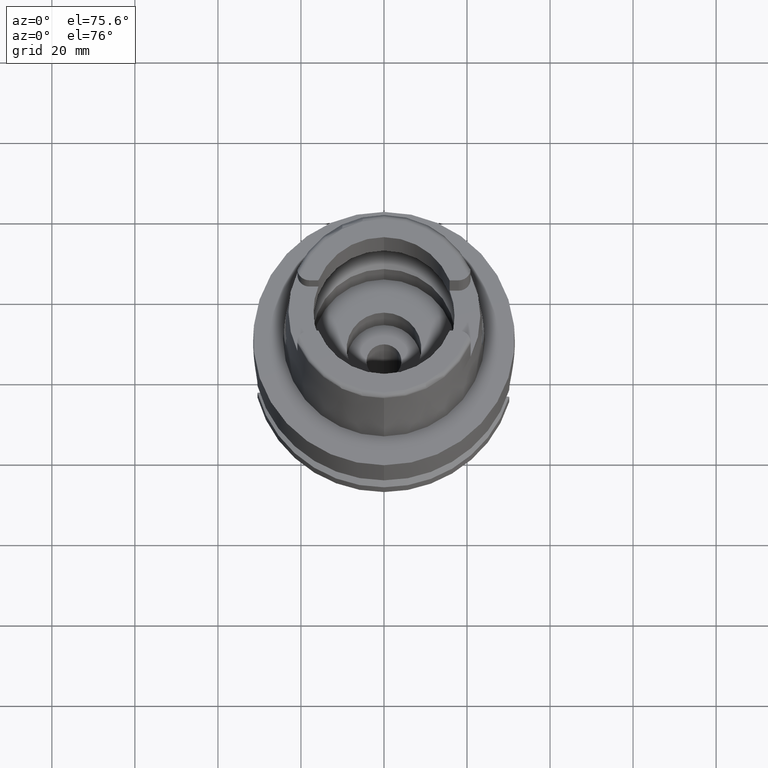
[diagram: clean part render]
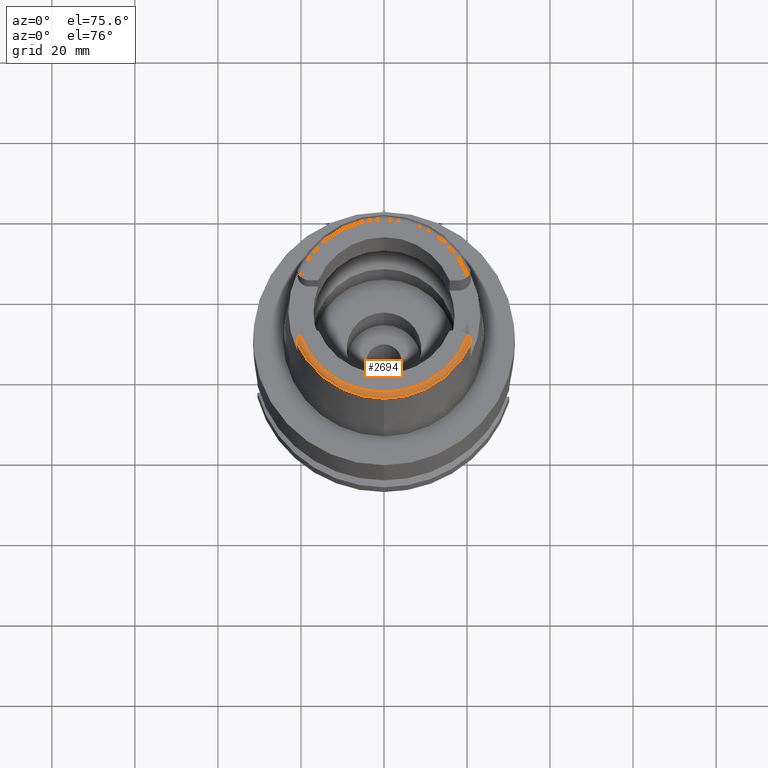
[diagram: same view with one face highlighted and labeled with its STEP entity id]
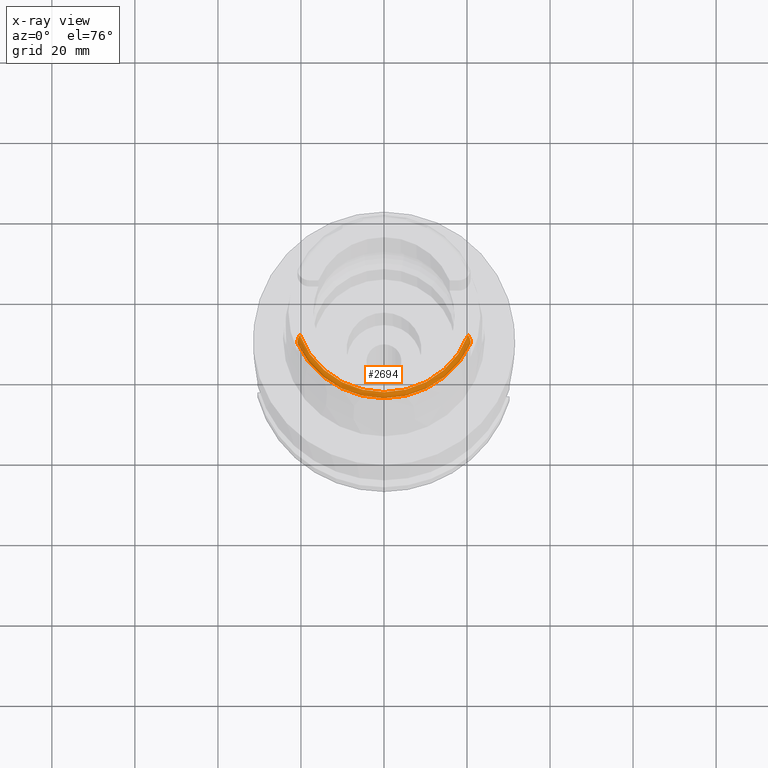
[diagram: x-ray of the same camera — body ghosted, the highlighted face saturated]
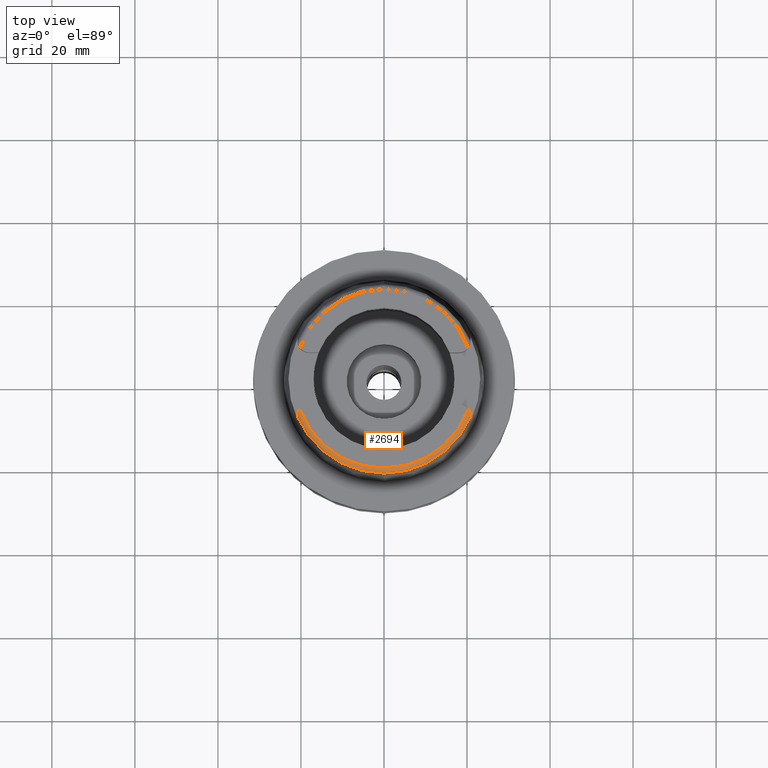
[diagram: same view with one face highlighted and labeled with its STEP entity id]
A machine part, auxiliary view. The second image highlights one B-rep face of the part: STEP entity #2694.
The next image is the same camera in x-ray: the body ghosted, the highlighted face saturated — about 0% of this face is hidden behind the body in this view.
A second angle (top view) of the same face is appended — the face is thin or edge-on in the first view.
In plain terms, the highlighted toroidal blend (fillet) surface has major radius 21.5735 mm and minor (blend) radius 1.2 mm.
Its self-contained STEP definition (entity closure, byte-faithful):
#185=CARTESIAN_POINT('',(0.E0,0.E0,3.2E1));
#186=DIRECTION('',(0.E0,0.E0,-1.E0));
#187=DIRECTION('',(9.395199128801E-1,-3.424942821446E-1,0.E0));
#188=AXIS2_PLACEMENT_3D('',#185,#186,#187);
#207=CARTESIAN_POINT('',(-2.086974104061E1,-9.111384044678E0,3.085992600048E1));
#208=CARTESIAN_POINT('',(-2.086967978479E1,-9.106815913945E0,3.089760295987E1));
#209=CARTESIAN_POINT('',(-2.086945080284E1,-9.088995385716E0,3.097482215033E1));
#210=CARTESIAN_POINT('',(-2.086783167196E1,-9.030866350028E0,3.109849300389E1));
#211=CARTESIAN_POINT('',(-2.086322221558E1,-8.944091743139E0,3.122174967104E1));
#212=CARTESIAN_POINT('',(-2.085297871342E1,-8.828642379823E0,3.134655940823E1));
#213=CARTESIAN_POINT('',(-2.083403211031E1,-8.687360824743E0,3.147018411525E1));
#214=CARTESIAN_POINT('',(-2.080191186435E1,-8.518140005541E0,3.159391017374E1));
#215=CARTESIAN_POINT('',(-2.075072128199E1,-8.319740738630E0,3.171566632972E1));
#216=CARTESIAN_POINT('',(-2.067242157266E1,-8.091030907004E0,3.183088479270E1));
#217=CARTESIAN_POINT('',(-2.056069500282E1,-7.841232962694E0,3.192730566871E1));
#218=CARTESIAN_POINT('',(-2.041954333691E1,-7.595455916784E0,3.198788702664E1));
#219=CARTESIAN_POINT('',(-2.031992495470E1,-7.455048288680E0,3.2E1));
#220=CARTESIAN_POINT('',(-2.026871835884E1,-7.388795116670E0,3.2E1));
#225=CARTESIAN_POINT('',(2.026871835884E1,-7.388795116670E0,3.2E1));
#226=CARTESIAN_POINT('',(2.031993739891E1,-7.455064389502E0,3.2E1));
#227=CARTESIAN_POINT('',(2.041955479141E1,-7.595479629197E0,3.198787854861E1));
#228=CARTESIAN_POINT('',(2.056062303337E1,-7.841105102522E0,3.192733889065E1));
#229=CARTESIAN_POINT('',(2.067232021641E1,-8.090777676654E0,3.183099551253E1));
#230=CARTESIAN_POINT('',(2.075064736640E1,-8.319492709785E0,3.171580459806E1));
#231=CARTESIAN_POINT('',(2.080185885161E1,-8.517900662081E0,3.159407024179E1));
#232=CARTESIAN_POINT('',(2.083400872169E1,-8.687201845950E0,3.147031638720E1));
#233=CARTESIAN_POINT('',(2.085297606451E1,-8.828610338381E0,3.134659314828E1));
#234=CARTESIAN_POINT('',(2.086322043847E1,-8.944064686277E0,3.122178628185E1));
#235=CARTESIAN_POINT('',(2.086783289008E1,-9.030890209728E0,3.109845575394E1));
#236=CARTESIAN_POINT('',(2.086945049589E1,-9.088991758202E0,3.097482444246E1));
#237=CARTESIAN_POINT('',(2.086967985546E1,-9.106815710763E0,3.089760194445E1));
#238=CARTESIAN_POINT('',(2.086974110889E1,-9.111383544988E0,3.085992740154E1));
#243=CARTESIAN_POINT('',(0.E0,0.E0,3.085992712280E1));
#244=DIRECTION('',(0.E0,0.E0,-1.E0));
#245=DIRECTION('',(9.164655183266E-1,-4.001136759952E-1,0.E0));
#246=AXIS2_PLACEMENT_3D('',#243,#244,#245);
#251=CARTESIAN_POINT('',(0.E0,0.E0,3.085992712280E1));
#252=DIRECTION('',(0.E0,0.E0,-1.E0));
#253=DIRECTION('',(0.E0,-1.E0,0.E0));
#254=AXIS2_PLACEMENT_3D('',#251,#252,#253);
#2233=CARTESIAN_POINT('',(-2.026871835884E1,-7.388795116669E0,3.2E1));
#2235=VERTEX_POINT('',#2233);
#2245=CARTESIAN_POINT('',(2.026871835884E1,-7.388795116670E0,3.2E1));
#2246=VERTEX_POINT('',#2245);
#2267=VERTEX_POINT('',#207);
#2274=VERTEX_POINT('',#238);
#2275=CARTESIAN_POINT('',(0.E0,-2.277198729362E1,3.085992712280E1));
#2276=VERTEX_POINT('',#2275);
#2679=CARTESIAN_POINT('',(0.E0,0.E0,3.08E1));
#2680=DIRECTION('',(0.E0,0.E0,1.E0));
#2681=DIRECTION('',(-6.539142454763E-4,-9.999997861981E-1,0.E0));
#2682=AXIS2_PLACEMENT_3D('',#2679,#2680,#2681);
#2683=TOROIDAL_SURFACE('',#2682,2.157348458609E1,1.2E0);
#2684=ORIENTED_EDGE('',*,*,#2668,.T.);
#2685=ORIENTED_EDGE('',*,*,#2657,.F.);
#2687=ORIENTED_EDGE('',*,*,#2686,.T.);
#2689=ORIENTED_EDGE('',*,*,#2688,.T.);
#2691=ORIENTED_EDGE('',*,*,#2690,.T.);
#2692=EDGE_LOOP('',(#2684,#2685,#2687,#2689,#2691));
#2693=FACE_OUTER_BOUND('',#2692,.F.);
#189=CIRCLE('',#188,2.157348458609E1);
#221=B_SPLINE_CURVE_WITH_KNOTS('',3,(#207,#208,#209,#210,#211,#212,#213,#214,
#215,#216,#217,#218,#219,#220),.UNSPECIFIED.,.F.,.F.,(4,1,1,1,1,1,1,1,1,1,1,4),(
0.E0,9.090909090909E-2,1.818181818182E-1,2.727272727273E-1,3.636363636364E-1,
4.545454545455E-1,5.454545454545E-1,6.363636363636E-1,7.272727272727E-1,
8.181818181818E-1,9.090909090909E-1,1.E0),.UNSPECIFIED.);
#239=B_SPLINE_CURVE_WITH_KNOTS('',3,(#225,#226,#227,#228,#229,#230,#231,#232,
#233,#234,#235,#236,#237,#238),.UNSPECIFIED.,.F.,.F.,(4,1,1,1,1,1,1,1,1,1,1,4),(
0.E0,9.090909090909E-2,1.818181818182E-1,2.727272727273E-1,3.636363636364E-1,
4.545454545455E-1,5.454545454545E-1,6.363636363636E-1,7.272727272727E-1,
8.181818181818E-1,9.090909090909E-1,1.E0),.UNSPECIFIED.);
#247=CIRCLE('',#246,2.277198729362E1);
#255=CIRCLE('',#254,2.277198729362E1);
#2657=EDGE_CURVE('',#2246,#2235,#189,.T.);
#2668=EDGE_CURVE('',#2267,#2235,#221,.T.);
#2686=EDGE_CURVE('',#2246,#2274,#239,.T.);
#2688=EDGE_CURVE('',#2274,#2276,#247,.T.);
#2690=EDGE_CURVE('',#2276,#2267,#255,.T.);
#2694=ADVANCED_FACE('',(#2693),#2683,.T.);